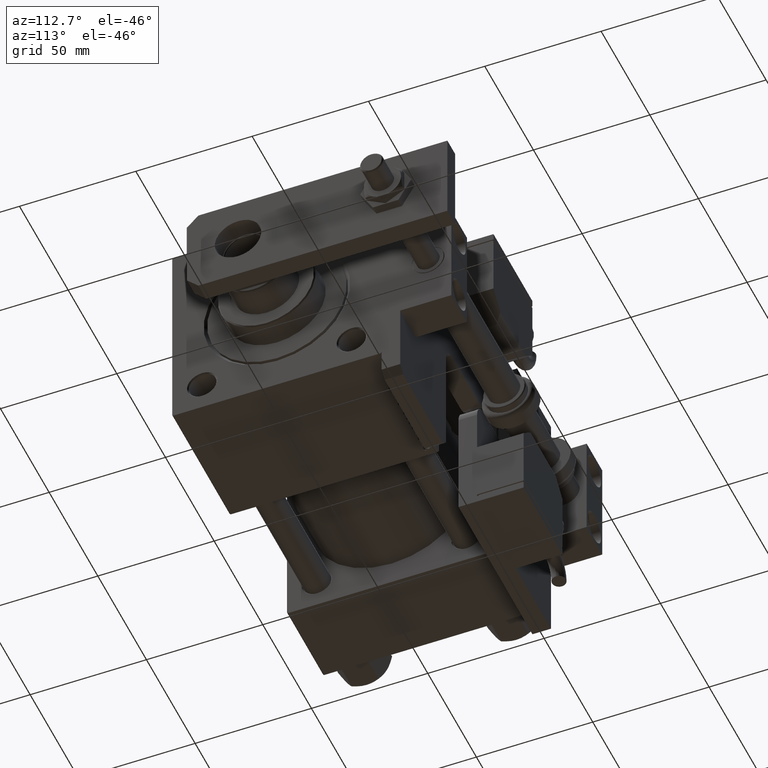
[diagram: clean part render]
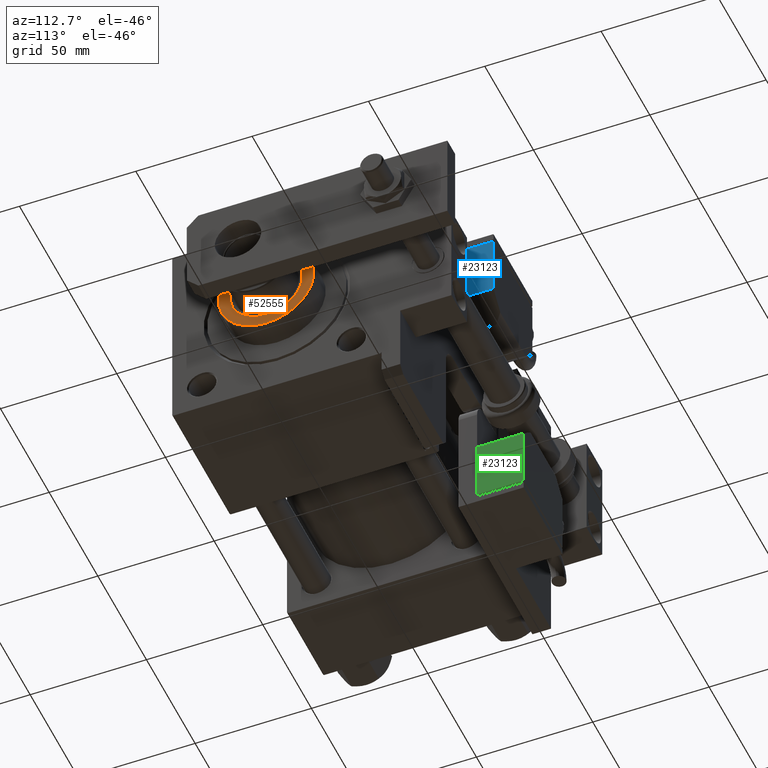
[diagram: same view with three faces highlighted in distinct colors, each labeled with its STEP entity id]
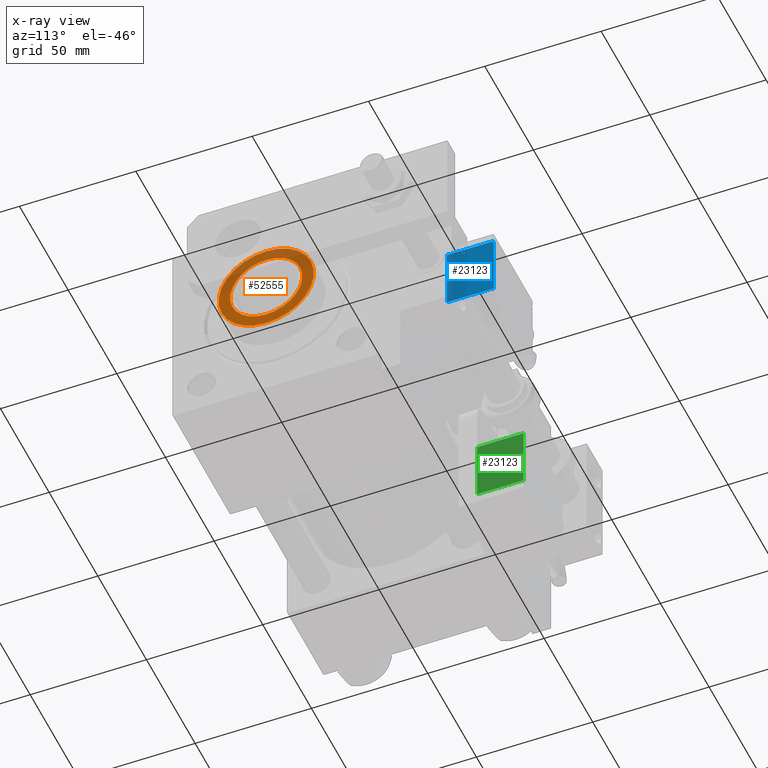
[diagram: x-ray of the same camera — body ghosted, the three highlighted faces saturated]
A machine part, auxiliary view with three faces highlighted in distinct colors.
The next image is the same camera in x-ray (body ghosted, the three faces saturated) — at least one of them is partly hidden behind the body in this view.
Their STEP definitions:

[orange] entity #52555 — the highlighted planar face has unit normal (1, 0, 0).
#477 = CARTESIAN_POINT ( 'NONE',  ( 15.50000000000000000, 0.000000000000000000, 39.69999999999999574 ) ) ;
#546 = DIRECTION ( 'NONE',  ( 1.000000000000000000, 0.000000000000000000, 0.000000000000000000 ) ) ;
#1568 = DIRECTION ( 'NONE',  ( 1.000000000000000000, 0.000000000000000000, 0.000000000000000000 ) ) ;
#2525 = ORIENTED_EDGE ( 'NONE', *, *, #9696, .F. ) ;
#3149 = CARTESIAN_POINT ( 'NONE',  ( 20.50000000000000355, 2.541142108230758269E-15, 39.69999999999999574 ) ) ;
#4285 = VERTEX_POINT ( 'NONE', #29082 ) ;
#6855 = DIRECTION ( 'NONE',  ( 0.000000000000000000, 0.000000000000000000, 1.000000000000000000 ) ) ;
#7109 = DIRECTION ( 'NONE',  ( 1.000000000000000000, 0.000000000000000000, 0.000000000000000000 ) ) ;
#7826 = EDGE_CURVE ( 'NONE', #24475, #43281, #25656, .T. ) ;
#8444 = DIRECTION ( 'NONE',  ( 1.000000000000000000, 0.000000000000000000, -0.000000000000000000 ) ) ;
#9015 = CARTESIAN_POINT ( 'NONE',  ( 0.000000000000000000, 0.000000000000000000, 39.69999999999999574 ) ) ;
#9282 = DIRECTION ( 'NONE',  ( 0.000000000000000000, 0.000000000000000000, 1.000000000000000000 ) ) ;
#9393 = AXIS2_PLACEMENT_3D ( 'NONE', #9015, #22023, #546 ) ;
#9696 = EDGE_CURVE ( 'NONE', #53691, #4285, #42037, .T. ) ;
#12175 = CARTESIAN_POINT ( 'NONE',  ( 0.000000000000000000, 0.000000000000000000, 39.69999999999999574 ) ) ;
#13438 = DIRECTION ( 'NONE',  ( 0.000000000000000000, 0.000000000000000000, 1.000000000000000000 ) ) ;
#14894 = AXIS2_PLACEMENT_3D ( 'NONE', #33156, #6855, #49862 ) ;
#16735 = AXIS2_PLACEMENT_3D ( 'NONE', #55430, #9282, #8444 ) ;
#17154 = CIRCLE ( 'NONE', #43328, 20.50000000000000355 ) ;
#17481 = PLANE ( 'NONE',  #16735 ) ;
#17752 = FACE_BOUND ( 'NONE', #51699, .T. ) ;
#22023 = DIRECTION ( 'NONE',  ( 0.000000000000000000, 0.000000000000000000, 1.000000000000000000 ) ) ;
#24475 = VERTEX_POINT ( 'NONE', #26721 ) ;
#25656 = CIRCLE ( 'NONE', #9393, 20.50000000000000355 ) ;
#26721 = CARTESIAN_POINT ( 'NONE',  ( -20.50000000000000355, 0.000000000000000000, 39.69999999999999574 ) ) ;
#28025 = ORIENTED_EDGE ( 'NONE', *, *, #36825, .T. ) ;
#29082 = CARTESIAN_POINT ( 'NONE',  ( -15.50000000000000000, 1.898202538678397557E-15, 39.69999999999999574 ) ) ;
#30354 = EDGE_LOOP ( 'NONE', ( #40365, #28025 ) ) ;
#31310 = AXIS2_PLACEMENT_3D ( 'NONE', #47966, #13438, #1568 ) ;
#33156 = CARTESIAN_POINT ( 'NONE',  ( 0.000000000000000000, 0.000000000000000000, 39.69999999999999574 ) ) ;
#36825 = EDGE_CURVE ( 'NONE', #43281, #24475, #17154, .T. ) ;
#40238 = CIRCLE ( 'NONE', #31310, 15.50000000000000000 ) ;
#40365 = ORIENTED_EDGE ( 'NONE', *, *, #7826, .T. ) ;
#42037 = CIRCLE ( 'NONE', #14894, 15.50000000000000000 ) ;
#42351 = ORIENTED_EDGE ( 'NONE', *, *, #50698, .F. ) ;
#43281 = VERTEX_POINT ( 'NONE', #3149 ) ;
#43328 = AXIS2_PLACEMENT_3D ( 'NONE', #12175, #54916, #7109 ) ;
#47966 = CARTESIAN_POINT ( 'NONE',  ( 0.000000000000000000, 0.000000000000000000, 39.69999999999999574 ) ) ;
#49862 = DIRECTION ( 'NONE',  ( 1.000000000000000000, 0.000000000000000000, 0.000000000000000000 ) ) ;
#50698 = EDGE_CURVE ( 'NONE', #4285, #53691, #40238, .T. ) ;
#51699 = EDGE_LOOP ( 'NONE', ( #2525, #42351 ) ) ;
#52277 = FACE_OUTER_BOUND ( 'NONE', #30354, .T. ) ;
#52555 = ADVANCED_FACE ( 'NONE', ( #17752, #52277 ), #17481, .T. ) ;
#53691 = VERTEX_POINT ( 'NONE', #477 ) ;
#54916 = DIRECTION ( 'NONE',  ( 0.000000000000000000, 0.000000000000000000, 1.000000000000000000 ) ) ;
#55430 = CARTESIAN_POINT ( 'NONE',  ( 0.000000000000000000, 0.000000000000000000, 39.69999999999999574 ) ) ;

[blue] entity #23123 — the highlighted planar face has unit normal (-1, 0, -0).
#557 = LINE ( 'NONE', #39572, #28807 ) ;
#829 = DIRECTION ( 'NONE',  ( -0.000000000000000000, -0.000000000000000000, -1.000000000000000000 ) ) ;
#3903 = EDGE_CURVE ( 'NONE', #34207, #5980, #557, .T. ) ;
#4012 = EDGE_CURVE ( 'NONE', #44955, #5980, #33040, .T. ) ;
#5166 = VERTEX_POINT ( 'NONE', #14595 ) ;
#5980 = VERTEX_POINT ( 'NONE', #30489 ) ;
#7828 = CARTESIAN_POINT ( 'NONE',  ( 20.00000000000005329, -13.49999999999996092, 10.00000000000000000 ) ) ;
#9248 = DIRECTION ( 'NONE',  ( -1.284980352575412699E-16, -1.000000000000000000, 0.000000000000000000 ) ) ;
#11972 = ORIENTED_EDGE ( 'NONE', *, *, #4012, .F. ) ;
#14595 = CARTESIAN_POINT ( 'NONE',  ( 20.00000000000005329, -13.49999999999996092, 10.00000000000000000 ) ) ;
#17957 = VECTOR ( 'NONE', #829, 1000.000000000000000 ) ;
#18910 = DIRECTION ( 'NONE',  ( 1.284980352575412699E-16, 1.000000000000000000, 0.000000000000000000 ) ) ;
#20032 = VECTOR ( 'NONE', #28770, 1000.000000000000000 ) ;
#20693 = CARTESIAN_POINT ( 'NONE',  ( 20.00000000000005684, 13.50000000000003730, 10.00000000000000000 ) ) ;
#21723 = EDGE_CURVE ( 'NONE', #5166, #34207, #21753, .T. ) ;
#21753 = LINE ( 'NONE', #52856, #17957 ) ;
#23123 = ADVANCED_FACE ( 'NONE', ( #51708 ), #34711, .F. ) ;
#23368 = ORIENTED_EDGE ( 'NONE', *, *, #3903, .T. ) ;
#23983 = CARTESIAN_POINT ( 'NONE',  ( 20.00000000000005684, 13.50000000000003730, 10.00000000000000000 ) ) ;
#27599 = EDGE_LOOP ( 'NONE', ( #23368, #11972, #47005, #42725 ) ) ;
#28770 = DIRECTION ( 'NONE',  ( 1.284980352575412699E-16, 1.000000000000000000, 0.000000000000000000 ) ) ;
#28807 = VECTOR ( 'NONE', #18910, 1000.000000000000000 ) ;
#28846 = AXIS2_PLACEMENT_3D ( 'NONE', #38686, #30743, #9248 ) ;
#30489 = CARTESIAN_POINT ( 'NONE',  ( 20.00000000000005684, 13.50000000000003730, -10.00000000000000000 ) ) ;
#30743 = DIRECTION ( 'NONE',  ( -1.000000000000000000, 1.284980352575412699E-16, 0.000000000000000000 ) ) ;
#33040 = LINE ( 'NONE', #23983, #45046 ) ;
#34207 = VERTEX_POINT ( 'NONE', #34998 ) ;
#34399 = LINE ( 'NONE', #7828, #20032 ) ;
#34711 = PLANE ( 'NONE',  #28846 ) ;
#34998 = CARTESIAN_POINT ( 'NONE',  ( 20.00000000000005329, -13.49999999999996092, -10.00000000000000000 ) ) ;
#38686 = CARTESIAN_POINT ( 'NONE',  ( 20.00000000000005329, -13.49999999999996092, 10.00000000000000000 ) ) ;
#39572 = CARTESIAN_POINT ( 'NONE',  ( 20.00000000000005329, -13.49999999999996092, -10.00000000000000000 ) ) ;
#41172 = EDGE_CURVE ( 'NONE', #5166, #44955, #34399, .T. ) ;
#42725 = ORIENTED_EDGE ( 'NONE', *, *, #21723, .T. ) ;
#44955 = VERTEX_POINT ( 'NONE', #20693 ) ;
#45046 = VECTOR ( 'NONE', #50298, 1000.000000000000000 ) ;
#47005 = ORIENTED_EDGE ( 'NONE', *, *, #41172, .F. ) ;
#50298 = DIRECTION ( 'NONE',  ( -0.000000000000000000, -0.000000000000000000, -1.000000000000000000 ) ) ;
#51708 = FACE_OUTER_BOUND ( 'NONE', #27599, .T. ) ;
#52856 = CARTESIAN_POINT ( 'NONE',  ( 20.00000000000005329, -13.49999999999996092, 10.00000000000000000 ) ) ;

[green] entity #23123 — the highlighted planar face has unit normal (-1, 0, 0).
#557 = LINE ( 'NONE', #39572, #28807 ) ;
#829 = DIRECTION ( 'NONE',  ( -0.000000000000000000, -0.000000000000000000, -1.000000000000000000 ) ) ;
#3903 = EDGE_CURVE ( 'NONE', #34207, #5980, #557, .T. ) ;
#4012 = EDGE_CURVE ( 'NONE', #44955, #5980, #33040, .T. ) ;
#5166 = VERTEX_POINT ( 'NONE', #14595 ) ;
#5980 = VERTEX_POINT ( 'NONE', #30489 ) ;
#7828 = CARTESIAN_POINT ( 'NONE',  ( 20.00000000000005329, -13.49999999999996092, 10.00000000000000000 ) ) ;
#9248 = DIRECTION ( 'NONE',  ( -1.284980352575412699E-16, -1.000000000000000000, 0.000000000000000000 ) ) ;
#11972 = ORIENTED_EDGE ( 'NONE', *, *, #4012, .F. ) ;
#14595 = CARTESIAN_POINT ( 'NONE',  ( 20.00000000000005329, -13.49999999999996092, 10.00000000000000000 ) ) ;
#17957 = VECTOR ( 'NONE', #829, 1000.000000000000000 ) ;
#18910 = DIRECTION ( 'NONE',  ( 1.284980352575412699E-16, 1.000000000000000000, 0.000000000000000000 ) ) ;
#20032 = VECTOR ( 'NONE', #28770, 1000.000000000000000 ) ;
#20693 = CARTESIAN_POINT ( 'NONE',  ( 20.00000000000005684, 13.50000000000003730, 10.00000000000000000 ) ) ;
#21723 = EDGE_CURVE ( 'NONE', #5166, #34207, #21753, .T. ) ;
#21753 = LINE ( 'NONE', #52856, #17957 ) ;
#23123 = ADVANCED_FACE ( 'NONE', ( #51708 ), #34711, .F. ) ;
#23368 = ORIENTED_EDGE ( 'NONE', *, *, #3903, .T. ) ;
#23983 = CARTESIAN_POINT ( 'NONE',  ( 20.00000000000005684, 13.50000000000003730, 10.00000000000000000 ) ) ;
#27599 = EDGE_LOOP ( 'NONE', ( #23368, #11972, #47005, #42725 ) ) ;
#28770 = DIRECTION ( 'NONE',  ( 1.284980352575412699E-16, 1.000000000000000000, 0.000000000000000000 ) ) ;
#28807 = VECTOR ( 'NONE', #18910, 1000.000000000000000 ) ;
#28846 = AXIS2_PLACEMENT_3D ( 'NONE', #38686, #30743, #9248 ) ;
#30489 = CARTESIAN_POINT ( 'NONE',  ( 20.00000000000005684, 13.50000000000003730, -10.00000000000000000 ) ) ;
#30743 = DIRECTION ( 'NONE',  ( -1.000000000000000000, 1.284980352575412699E-16, 0.000000000000000000 ) ) ;
#33040 = LINE ( 'NONE', #23983, #45046 ) ;
#34207 = VERTEX_POINT ( 'NONE', #34998 ) ;
#34399 = LINE ( 'NONE', #7828, #20032 ) ;
#34711 = PLANE ( 'NONE',  #28846 ) ;
#34998 = CARTESIAN_POINT ( 'NONE',  ( 20.00000000000005329, -13.49999999999996092, -10.00000000000000000 ) ) ;
#38686 = CARTESIAN_POINT ( 'NONE',  ( 20.00000000000005329, -13.49999999999996092, 10.00000000000000000 ) ) ;
#39572 = CARTESIAN_POINT ( 'NONE',  ( 20.00000000000005329, -13.49999999999996092, -10.00000000000000000 ) ) ;
#41172 = EDGE_CURVE ( 'NONE', #5166, #44955, #34399, .T. ) ;
#42725 = ORIENTED_EDGE ( 'NONE', *, *, #21723, .T. ) ;
#44955 = VERTEX_POINT ( 'NONE', #20693 ) ;
#45046 = VECTOR ( 'NONE', #50298, 1000.000000000000000 ) ;
#47005 = ORIENTED_EDGE ( 'NONE', *, *, #41172, .F. ) ;
#50298 = DIRECTION ( 'NONE',  ( -0.000000000000000000, -0.000000000000000000, -1.000000000000000000 ) ) ;
#51708 = FACE_OUTER_BOUND ( 'NONE', #27599, .T. ) ;
#52856 = CARTESIAN_POINT ( 'NONE',  ( 20.00000000000005329, -13.49999999999996092, 10.00000000000000000 ) ) ;